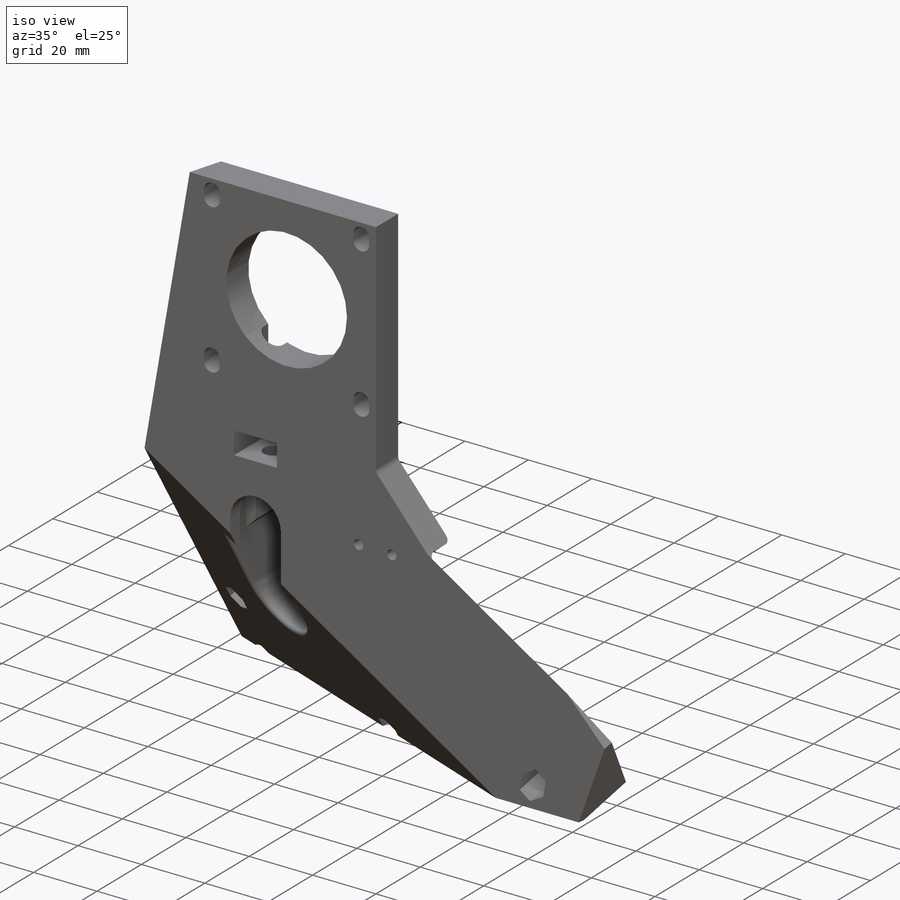
[diagram: iso view]
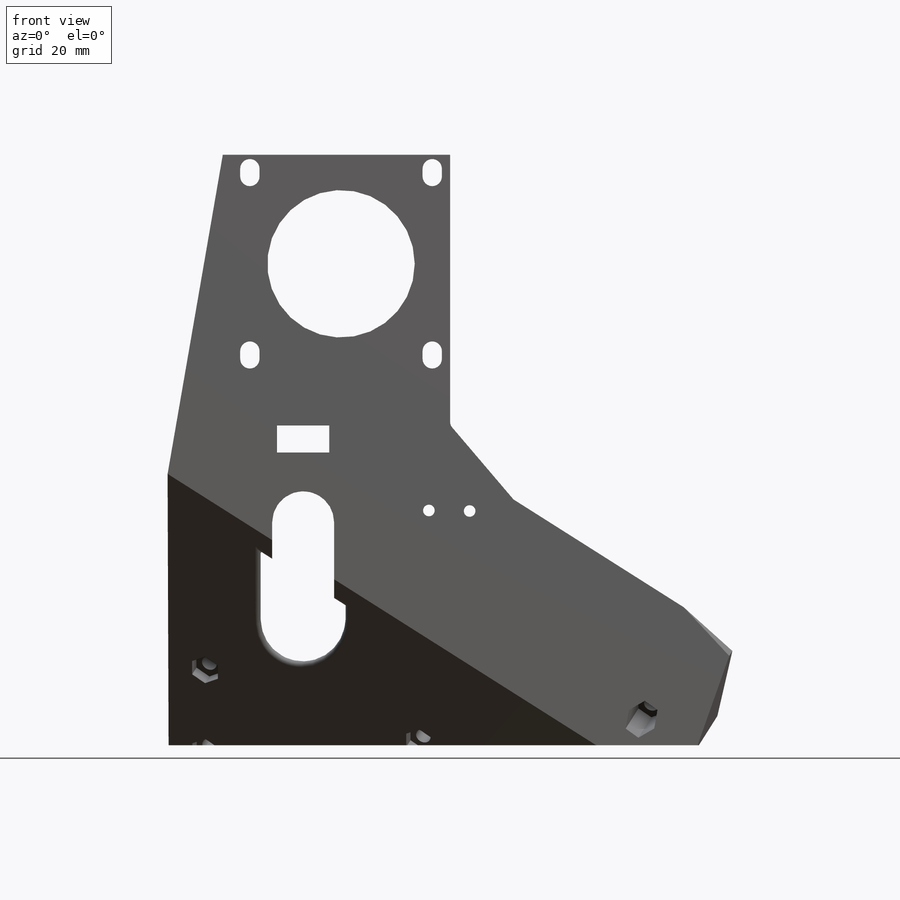
[diagram: front view]
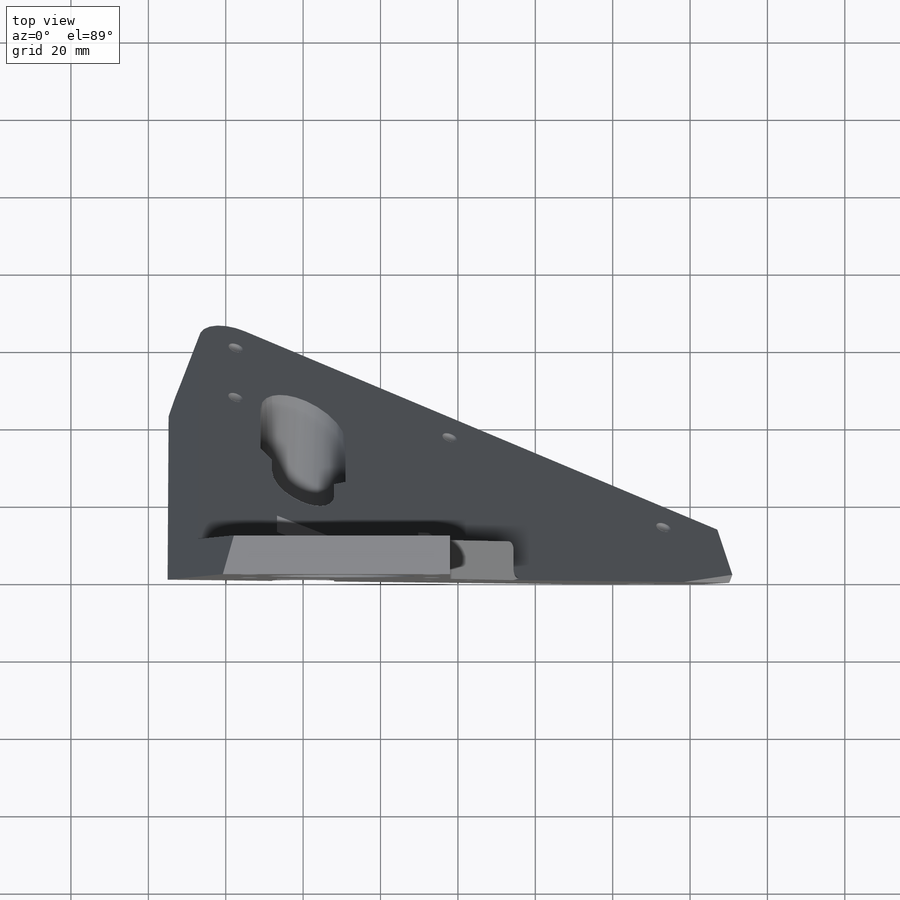
[diagram: top view]
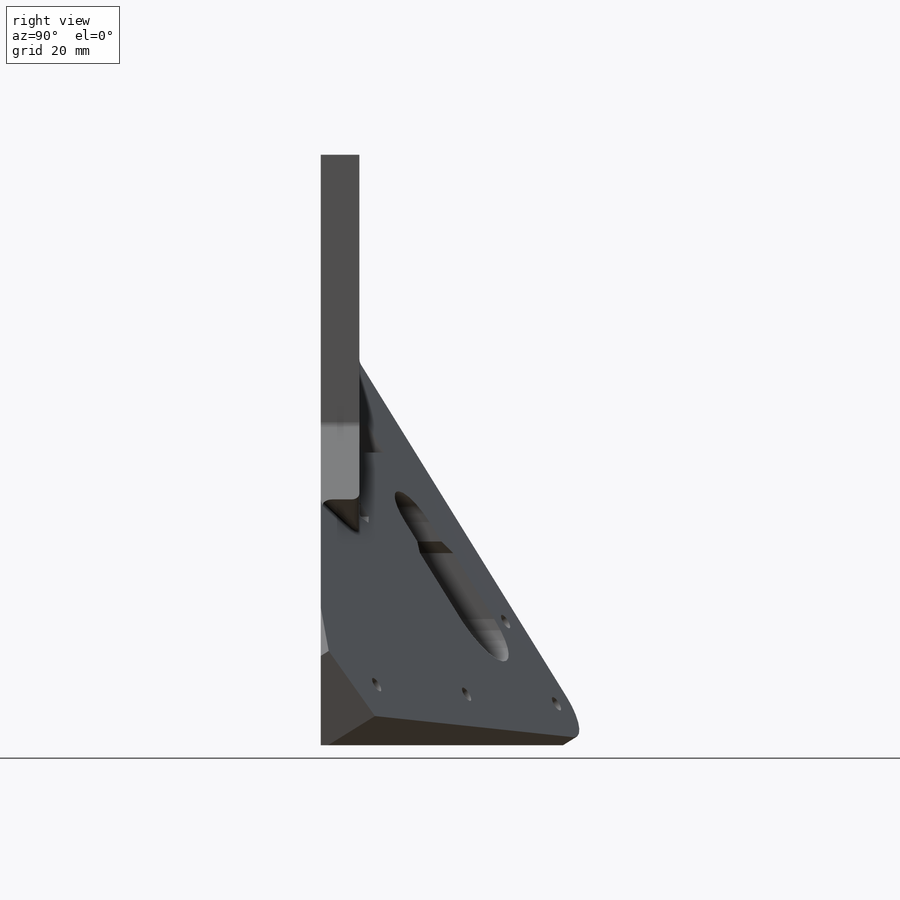
[diagram: right view]
SOLIDWORKS PART (.sldprt)
format: sldprt  version: not decoded by parser v0  size: 1,236,480 bytes
history: native  units: mm
features: sketch x20, cut_extrude x10, extrude x6, plane x5, fillet x2, material x1, cut_revolve x1, hole x1 (+12 scaffold rows collapsed)
feature tree (58):
  scaffold x12  (default folders/planes/origin — collapsed)
  material  "Material <not specified>"
  sketch  "Sketch1"  dims[c1.D1=22.0mm c1.D2=~50.760407mm c1.D3=~57.670859mm c1.D4=~121.933107mm c1.D5=~122.039486mm c2.D5=90.0deg c3.D5=~57.059541mm]
  extrude  "Boss-Extrude1"  [1 undecoded]
  sketch  "Sketch2"  dims[D1=10.0mm]
  cut_extrude  "Cut-Extrude1"  Depth=90mm
  sketch  "Sketch3"  dims[D1=38.0mm]
  extrude  "Boss-Extrude2"  Depth=10mm
  sketch  "Sketch4"
  cut_extrude  "Cut-Extrude2"  Depth=10mm
  sketch  "Sketch5"  dims[D1=25.0mm]
  cut_extrude  "Cut-Extrude3"  [1 undecoded]
  sketch  "Sketch6"  dims[D4=10.0mm D1=30.0mm D2=30.0mm D3=8.0mm]
  extrude  "Boss-Extrude3"  Depth=10mm
  sketch  "Sketch7"  dims[D1=7.5mm D2=16.0mm]
  extrude  "Boss-Extrude4"  Depth=4.5mm
  plane  "Plane1"  Offset=7mm
  sketch  "Sketch8"  dims[c1.D2=11.0mm c1.D3=3.5mm c2.D3=45.0deg c2.D4=~4.949747mm c3.D4=45.0deg c3.D2=8.0mm c3.D1=0.0mm]
  extrude  "Boss-Extrude5"  [1 undecoded]
  plane  "Plane2"  Offset=25mm
  fillet  "Fillet3"  Radius=1mm
  plane  "Plane3"  Offset=3.5mm
  sketch  "Sketch9"  dims[D1=3.0mm D2=55.0mm]
  cut_revolve  "Cut-Revolve1"  Angle=360deg
  sketch  "Sketch11"  dims[D1=1.0mm D2=1.0mm]
  cut_extrude  "Cut-Extrude4"  Depth=10mm
  sketch  "Sketch12"  dims[D1=13.5mm D2=7.0mm D3=28.0mm D4=5.0mm D5=18.0mm]
  cut_extrude  "Cut-Extrude5"  [1 undecoded]
  sketch  "Sketch14"  dims[D1=25.0mm D2=3.0mm D3=30.0mm]
  cut_extrude  "Cut-Extrude7"  Depth=10mm
  sketch  "Sketch17"  dims[c1.D1=4.0mm c1.D2=~42.95541mm c1.D3=10.0mm c1.D4=10.0mm c1.D5=120.0mm c2.D2=25.0mm]
  cut_extrude  "Cut-Extrude8"  Depth=30mm
  sketch  "Sketch18"  dims[D1=7.0mm]
  cut_extrude  "Cut-Extrude9"  Depth=3.5mm
  plane  "Plane4"  Offset=10mm
  sketch  "Sketch19"
  cut_extrude  "Cut-Extrude10"  Depth=15mm
  sketch  "Sketch24"  dims[D1=28.0mm D2=16.0mm]
  plane  "Plane5"
  sketch  "Sketch25"  dims[D1=16.0mm D2=10.0mm]
  extrude  "Boss-Extrude6"  [1 undecoded]
  fillet  "Fillet4"  Radius=2mm
  hole  "Ø3.0 (3) Diameter Hole1"  Diameter=3mm Depth=30mm
  sketch  "Sketch26"
  sketch  "Sketch27"  dims[Hole Dia.=3.0mm Hole Depth=30.0mm Drill Angle=118.0deg]
  sketch  "Sketch28"  dims[D1=5.5mm]
  cut_extrude  "Cut-Extrude11"  Depth=2.5mm
decode coverage: 32 of 40 modeling features carry decoded parameters
note: ~ marks probable driven/reference dimensions
note: 5 parameter values undecoded
summary: no parameter record found for 5 features
note: suppression state not decoded; provenance and decode notes live in map.json
